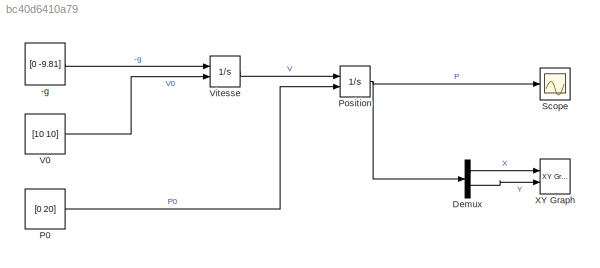
MODEL slx_bc40d6410a79
KIND model
CONFIG AbsTol = auto
CONFIG FixedStep = auto
CONFIG MaxStep = auto
CONFIG MinStep = auto
CONFIG RelTol = 1e-3
CONFIG SampleTimeConstraint = Unconstrained
CONFIG Solver = ode45
CONFIG SolverMode = Auto
CONFIG SolverName = ode45
CONFIG StartTime = 0.0
CONFIG StopTime = 10.0
BLOCK [Constant] -g
  Value = [0 -9.81]
BLOCK [Demux] Demux
  DisplayOption = bar
  Outputs = 2
  Ports = [1, 2]
BLOCK [Constant] P0
  Value = [0 20]
BLOCK [Integrator] Position
  InitialConditionSource = external
  Ports = [2, 1]
BLOCK [Scope] Scope
  Floating = off
  NumInputPorts = 1
  Ports = [1]
BLOCK [Constant] V0
  Value = [10 10]
BLOCK [Integrator] Vitesse
  InitialConditionSource = external
  Ports = [2, 1]
BLOCK [Reference] XY Graph  REF=simulink/Sinks/XY Graph
  Ports = [2]
  SourceBlock = simulink/Sinks/XY Graph
  SourceType = XY scope.
  st = -1
  xmax = 100
  xmin = 0
  ymax = 50
  ymin = -400
LINE -g:1 -> Vitesse:1
LINE Demux:1 -> XY Graph:1
LINE Demux:2 -> XY Graph:2
LINE P0:1 -> Position:2
NET Position:1 -> Demux:1, Scope:1
LINE V0:1 -> Vitesse:2
LINE Vitesse:1 -> Position:1
note: NET lines group one-source signal fan-out (src -> all destinations, sorted); 1:1 wires keep LINE
